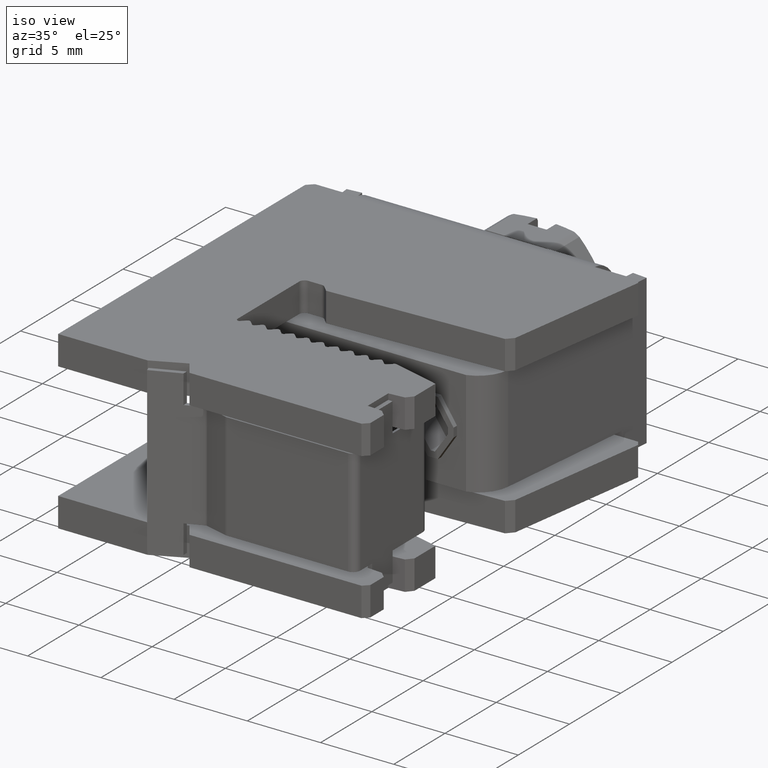
[diagram: clean part render]
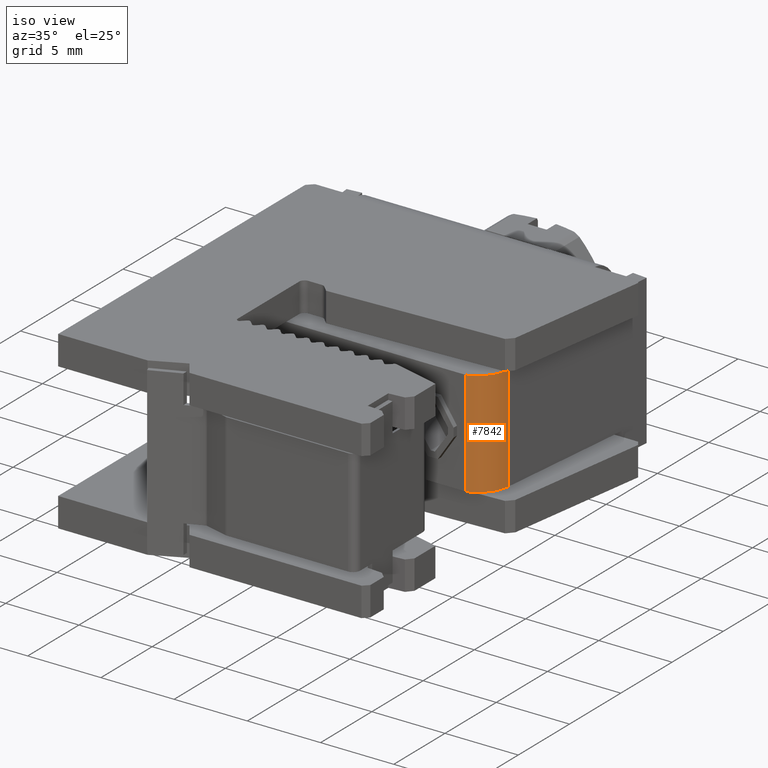
[diagram: same view with one face highlighted and labeled with its STEP entity id]
A machine part, iso view. The second image highlights one B-rep face of the part: STEP entity #7842.
In plain terms, the highlighted cylindrical surface (partial cylindrical patch) has radius 2.22 mm, axis along (-0, -0, -1).
Its self-contained STEP definition (entity closure, byte-faithful):
#192 = DIRECTION ( 'NONE',  ( -1.000000000000000000, -7.814213575578281800E-016, 0.0000000000000000000 ) ) ;
#198 = LINE ( 'NONE', #201, #2711 ) ;
#199 = DIRECTION ( 'NONE',  ( 0.0000000000000000000, 0.0000000000000000000, 1.000000000000000000 ) ) ;
#201 = CARTESIAN_POINT ( 'NONE',  ( 16.32471074368996300, 11.58307502829473100, 9.599999999999999600 ) ) ;
#203 = CARTESIAN_POINT ( 'NONE',  ( 15.66136190765479700, 13.70160915695312600, 2.399999999999999500 ) ) ;
#212 = DIRECTION ( 'NONE',  ( -0.0000000000000000000, -0.0000000000000000000, -1.000000000000000000 ) ) ;
#226 = DIRECTION ( 'NONE',  ( 0.0000000000000000000, 0.0000000000000000000, 1.000000000000000000 ) ) ;
#255 = LINE ( 'NONE', #258, #2714 ) ;
#258 = CARTESIAN_POINT ( 'NONE',  ( 17.87001372396431600, 13.47783318220979800, 9.599999999999999600 ) ) ;
#660 = CARTESIAN_POINT ( 'NONE',  ( 17.87001372396431300, 13.47783318220980000, 9.599999999999999600 ) ) ;
#678 = CARTESIAN_POINT ( 'NONE',  ( 17.87001372396431300, 13.47783318220980000, 2.399999999999999500 ) ) ;
#709 = CARTESIAN_POINT ( 'NONE',  ( 16.32471074368996300, 11.58307502829472900, 9.599999999999999600 ) ) ;
#717 = CARTESIAN_POINT ( 'NONE',  ( 16.32471074368996300, 11.58307502829472900, 2.399999999999999500 ) ) ;
#885 = CARTESIAN_POINT ( 'NONE',  ( 15.66136190765479700, 13.70160915695312600, 9.599999999999999600 ) ) ;
#892 = DIRECTION ( 'NONE',  ( -1.000000000000000000, -7.814213575578281800E-016, 0.0000000000000000000 ) ) ;
#906 = DIRECTION ( 'NONE',  ( 0.0000000000000000000, 0.0000000000000000000, 1.000000000000000000 ) ) ;
#1405 = DIRECTION ( 'NONE',  ( -1.000000000000000000, 0.0000000000000000000, 0.0000000000000000000 ) ) ;
#1409 = FACE_OUTER_BOUND ( 'NONE', #6310, .T. ) ;
#1415 = CARTESIAN_POINT ( 'NONE',  ( 15.66136190765479700, 13.70160915695312600, 9.599999999999999600 ) ) ;
#1433 = CYLINDRICAL_SURFACE ( 'NONE', #2423, 2.219959128578631100 ) ;
#1442 = DIRECTION ( 'NONE',  ( -0.0000000000000000000, -0.0000000000000000000, -1.000000000000000000 ) ) ;
#2423 = AXIS2_PLACEMENT_3D ( 'NONE', #1415, #1442, #1405 ) ;
#2673 = AXIS2_PLACEMENT_3D ( 'NONE', #885, #906, #892 ) ;
#2688 = CIRCLE ( 'NONE', #2673, 2.219959128578631100 ) ;
#2711 = VECTOR ( 'NONE', #212, 1000.000000000000000 ) ;
#2714 = VECTOR ( 'NONE', #226, 1000.000000000000000 ) ;
#2728 = CIRCLE ( 'NONE', #2753, 2.219959128578631100 ) ;
#2753 = AXIS2_PLACEMENT_3D ( 'NONE', #203, #199, #192 ) ;
#3295 = EDGE_CURVE ( 'NONE', #6708, #6633, #2688, .T. ) ;
#3399 = EDGE_CURVE ( 'NONE', #6686, #6692, #2728, .T. ) ;
#3400 = EDGE_CURVE ( 'NONE', #6708, #6686, #198, .T. ) ;
#3409 = EDGE_CURVE ( 'NONE', #6692, #6633, #255, .T. ) ;
#4737 = ORIENTED_EDGE ( 'NONE', *, *, #3400, .T. ) ;
#4742 = ORIENTED_EDGE ( 'NONE', *, *, #3399, .T. ) ;
#4766 = ORIENTED_EDGE ( 'NONE', *, *, #3295, .F. ) ;
#4789 = ORIENTED_EDGE ( 'NONE', *, *, #3409, .T. ) ;
#6310 = EDGE_LOOP ( 'NONE', ( #4742, #4789, #4766, #4737 ) ) ;
#6633 = VERTEX_POINT ( 'NONE', #660 ) ;
#6686 = VERTEX_POINT ( 'NONE', #717 ) ;
#6692 = VERTEX_POINT ( 'NONE', #678 ) ;
#6708 = VERTEX_POINT ( 'NONE', #709 ) ;
#7842 = ADVANCED_FACE ( 'NONE', ( #1409 ), #1433, .T. ) ;